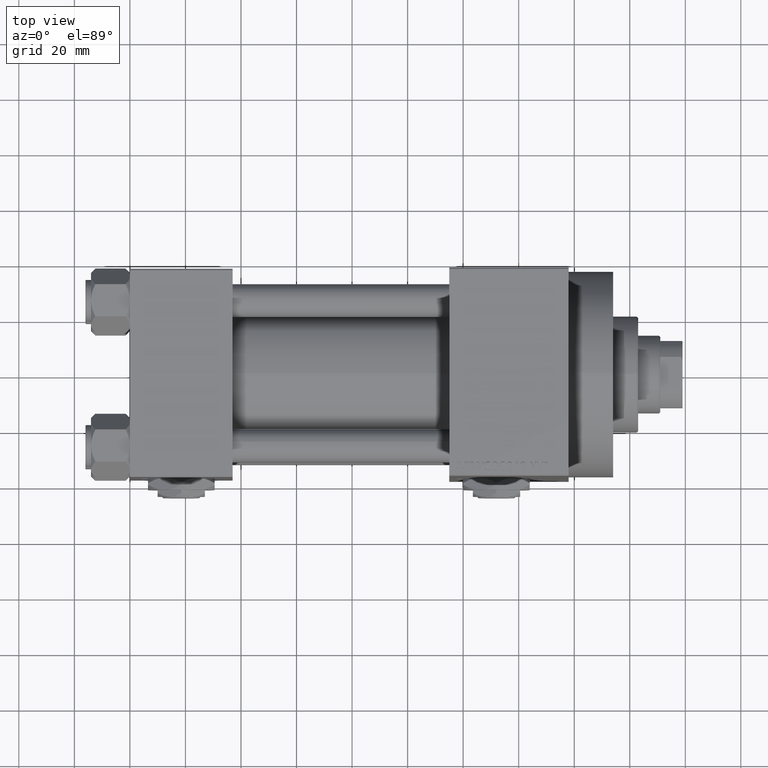
[diagram: clean part render]
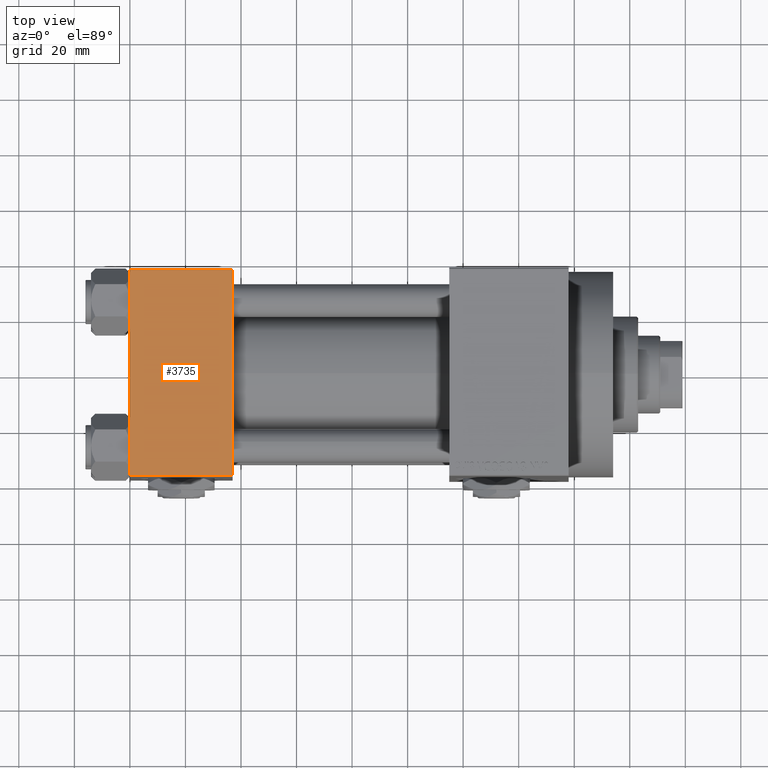
[diagram: same view with one face highlighted and labeled with its STEP entity id]
A machine part, top view. The second image highlights one B-rep face of the part: STEP entity #3735.
In plain terms, the highlighted planar face has unit normal (0, 0, -1).
Its self-contained STEP definition (entity closure, byte-faithful):
#1552 = ORIENTED_EDGE ( 'NONE', *, *, #35615, .F. ) ;
#2986 = CARTESIAN_POINT ( 'NONE',  ( 37.00000000000000000, -37.00000000000000711, 37.49999999999999289 ) ) ;
#3735 = ADVANCED_FACE ( 'NONE', ( #15662 ), #31427, .F. ) ;
#3838 = CARTESIAN_POINT ( 'NONE',  ( 37.00000000000000000, 37.49999999999999289, 37.50000000000000000 ) ) ;
#4486 = CARTESIAN_POINT ( 'NONE',  ( 0.000000000000000000, 36.99999999999999289, 37.50000000000000000 ) ) ;
#4518 = EDGE_LOOP ( 'NONE', ( #35057, #25490, #1552, #37310 ) ) ;
#5436 = EDGE_CURVE ( 'NONE', #36947, #26360, #37533, .T. ) ;
#6528 = CARTESIAN_POINT ( 'NONE',  ( 0.000000000000000000, 36.99999999999999289, 37.50000000000000000 ) ) ;
#7419 = VERTEX_POINT ( 'NONE', #16911 ) ;
#7826 = DIRECTION ( 'NONE',  ( 0.000000000000000000, -1.000000000000000000, -9.251858538542971581E-17 ) ) ;
#7993 = DIRECTION ( 'NONE',  ( -1.000000000000000000, 0.000000000000000000, 0.000000000000000000 ) ) ;
#14338 = VECTOR ( 'NONE', #22002, 1000.000000000000000 ) ;
#15554 = CARTESIAN_POINT ( 'NONE',  ( 37.00000000000000000, 36.99999999999999289, 37.50000000000000000 ) ) ;
#15662 = FACE_OUTER_BOUND ( 'NONE', #4518, .T. ) ;
#16060 = AXIS2_PLACEMENT_3D ( 'NONE', #46694, #23405, #31171 ) ;
#16911 = CARTESIAN_POINT ( 'NONE',  ( 0.000000000000000000, -37.00000000000000711, 37.49999999999999289 ) ) ;
#17042 = EDGE_CURVE ( 'NONE', #26360, #7419, #26850, .T. ) ;
#18505 = LINE ( 'NONE', #2986, #14338 ) ;
#19336 = EDGE_CURVE ( 'NONE', #7419, #29314, #18505, .T. ) ;
#19980 = VECTOR ( 'NONE', #7993, 1000.000000000000000 ) ;
#21967 = VECTOR ( 'NONE', #33900, 1000.000000000000000 ) ;
#22002 = DIRECTION ( 'NONE',  ( 1.000000000000000000, 0.000000000000000000, 0.000000000000000000 ) ) ;
#23405 = DIRECTION ( 'NONE',  ( 0.000000000000000000, 9.251858538542971581E-17, -1.000000000000000000 ) ) ;
#25490 = ORIENTED_EDGE ( 'NONE', *, *, #19336, .T. ) ;
#26360 = VERTEX_POINT ( 'NONE', #6528 ) ;
#26611 = CARTESIAN_POINT ( 'NONE',  ( 0.000000000000000000, 37.49999999999999289, 37.50000000000000000 ) ) ;
#26850 = LINE ( 'NONE', #26611, #47821 ) ;
#29314 = VERTEX_POINT ( 'NONE', #44003 ) ;
#29389 = LINE ( 'NONE', #3838, #21967 ) ;
#31171 = DIRECTION ( 'NONE',  ( 0.000000000000000000, 1.000000000000000000, 9.251858538542971581E-17 ) ) ;
#31427 = PLANE ( 'NONE',  #16060 ) ;
#33900 = DIRECTION ( 'NONE',  ( 0.000000000000000000, -1.000000000000000000, -9.251858538542971581E-17 ) ) ;
#35057 = ORIENTED_EDGE ( 'NONE', *, *, #17042, .T. ) ;
#35615 = EDGE_CURVE ( 'NONE', #36947, #29314, #29389, .T. ) ;
#36947 = VERTEX_POINT ( 'NONE', #15554 ) ;
#37310 = ORIENTED_EDGE ( 'NONE', *, *, #5436, .T. ) ;
#37533 = LINE ( 'NONE', #4486, #19980 ) ;
#44003 = CARTESIAN_POINT ( 'NONE',  ( 37.00000000000000000, -37.00000000000000711, 37.49999999999999289 ) ) ;
#46694 = CARTESIAN_POINT ( 'NONE',  ( 37.00000000000000000, 37.49999999999999289, 37.50000000000000000 ) ) ;
#47821 = VECTOR ( 'NONE', #7826, 1000.000000000000000 ) ;